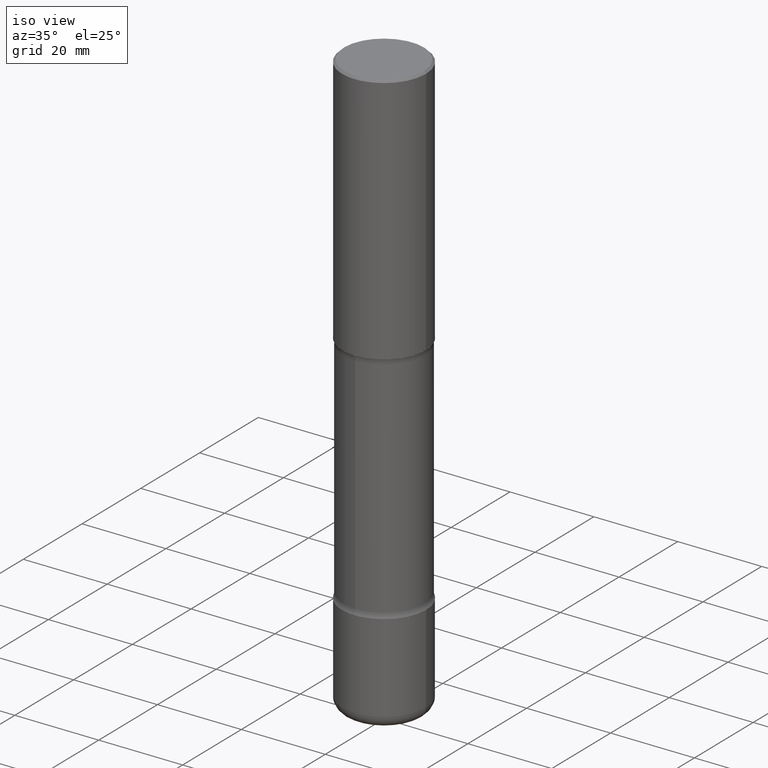
[diagram: clean part render]
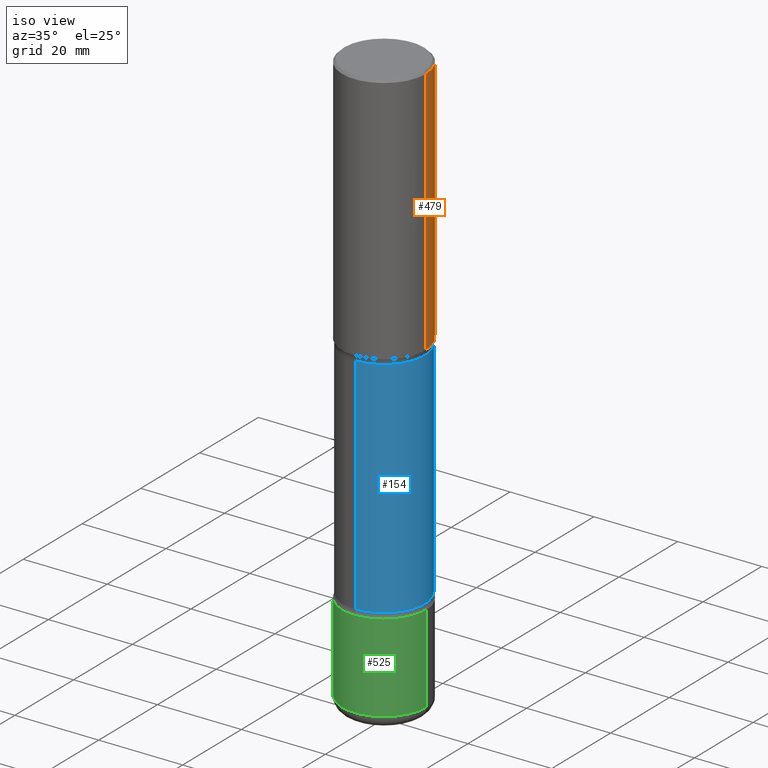
[diagram: same view with three faces highlighted in distinct colors, each labeled with its STEP entity id]
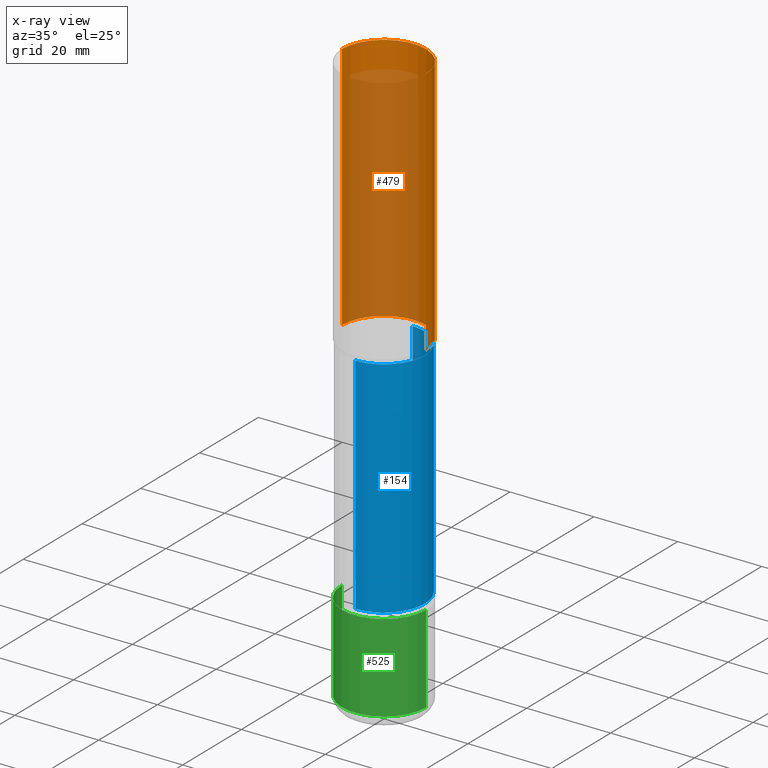
[diagram: x-ray of the same camera — body ghosted, the three highlighted faces saturated]
A machine part, iso view with three faces highlighted in distinct colors.
The next image is the same camera in x-ray (body ghosted, the three faces saturated) — at least one of them is partly hidden behind the body in this view.
Their STEP definitions:

[orange] entity #479 — the highlighted cylindrical surface (partial cylindrical patch) has radius 10 mm, axis along (-0, 0, 1).
#3 = AXIS2_PLACEMENT_3D ( 'NONE', #250, #351, #558 ) ;
#14 = VECTOR ( 'NONE', #131, 39.37007874015748143 ) ;
#51 = EDGE_CURVE ( 'NONE', #551, #335, #510, .T. ) ;
#60 = DIRECTION ( 'NONE',  ( 1.000000000000000000, -6.982962677686265922E-15, 0.000000000000000000 ) ) ;
#66 = CARTESIAN_POINT ( 'NONE',  ( 0.3937000000000002164, -1.099676962482036442E-14, -2.362200000000000077 ) ) ;
#76 = VECTOR ( 'NONE', #407, 39.37007874015748143 ) ;
#131 = DIRECTION ( 'NONE',  ( -2.445468806185136877E-29, 3.491481338843145188E-15, 1.000000000000000000 ) ) ;
#143 = CARTESIAN_POINT ( 'NONE',  ( -0.3937000000000000499, 2.679362779428219918E-15, -0.02000000000000008715 ) ) ;
#149 = CARTESIAN_POINT ( 'NONE',  ( -0.3937000000000002720, -1.361296672008554112E-15, -2.362200000000000077 ) ) ;
#161 = EDGE_CURVE ( 'NONE', #383, #432, #304, .T. ) ;
#170 = CARTESIAN_POINT ( 'NONE',  ( 0.3937000000000000499, -2.770807688499515734E-15, -0.02000000000000008715 ) ) ;
#179 = EDGE_CURVE ( 'NONE', #383, #551, #246, .T. ) ;
#200 = FACE_OUTER_BOUND ( 'NONE', #518, .T. ) ;
#216 = CARTESIAN_POINT ( 'NONE',  ( 0.3937000000000001054, -2.749192406205084005E-15, 1.919750796630860452E-29 ) ) ;
#241 = DIRECTION ( 'NONE',  ( -2.445468806185136597E-29, 3.491481338843145583E-15, 1.000000000000000000 ) ) ;
#245 = ORIENTED_EDGE ( 'NONE', *, *, #179, .F. ) ;
#246 = LINE ( 'NONE', #216, #14 ) ;
#250 = CARTESIAN_POINT ( 'NONE',  ( 5.776686413970530874E-29, -8.247577218615279626E-15, -2.362200000000000077 ) ) ;
#266 = CARTESIAN_POINT ( 'NONE',  ( -0.3937000000000001054, 2.797406750687515181E-15, -1.936584745033357016E-29 ) ) ;
#269 = LINE ( 'NONE', #266, #76 ) ;
#270 = CARTESIAN_POINT ( 'NONE',  ( 4.890937612370294178E-31, -6.982962677686321191E-17, -0.02000000000000008715 ) ) ;
#303 = CARTESIAN_POINT ( 'NONE',  ( 0.000000000000000000, 0.000000000000000000, 0.000000000000000000 ) ) ;
#304 = CIRCLE ( 'NONE', #3, 0.3937000000000002164 ) ;
#335 = VERTEX_POINT ( 'NONE', #143 ) ;
#341 = ORIENTED_EDGE ( 'NONE', *, *, #51, .F. ) ;
#351 = DIRECTION ( 'NONE',  ( -2.445468806185136597E-29, 3.491481338843145583E-15, 1.000000000000000000 ) ) ;
#383 = VERTEX_POINT ( 'NONE', #66 ) ;
#395 = AXIS2_PLACEMENT_3D ( 'NONE', #303, #241, #485 ) ;
#407 = DIRECTION ( 'NONE',  ( -2.445468806185136877E-29, 3.491481338843145188E-15, 1.000000000000000000 ) ) ;
#417 = EDGE_CURVE ( 'NONE', #432, #335, #269, .T. ) ;
#420 = AXIS2_PLACEMENT_3D ( 'NONE', #270, #451, #60 ) ;
#427 = ORIENTED_EDGE ( 'NONE', *, *, #417, .T. ) ;
#432 = VERTEX_POINT ( 'NONE', #149 ) ;
#451 = DIRECTION ( 'NONE',  ( -2.445468806185136597E-29, 3.491481338843145583E-15, 1.000000000000000000 ) ) ;
#479 = ADVANCED_FACE ( 'NONE', ( #200 ), #555, .T. ) ;
#485 = DIRECTION ( 'NONE',  ( 1.000000000000000000, -6.982962677686266711E-15, 4.876176775795935793E-29 ) ) ;
#510 = CIRCLE ( 'NONE', #420, 0.3937000000000000499 ) ;
#512 = ORIENTED_EDGE ( 'NONE', *, *, #161, .T. ) ;
#518 = EDGE_LOOP ( 'NONE', ( #512, #427, #341, #245 ) ) ;
#551 = VERTEX_POINT ( 'NONE', #170 ) ;
#555 = CYLINDRICAL_SURFACE ( 'NONE', #395, 0.3937000000000001054 ) ;
#558 = DIRECTION ( 'NONE',  ( 1.000000000000000000, -6.982962677686266711E-15, 0.000000000000000000 ) ) ;

[blue] entity #154 — the highlighted cylindrical surface (partial cylindrical patch) has radius 9.7409 mm, axis along (0, -0, -1).
#7 = DIRECTION ( 'NONE',  ( 6.982962677686265133E-15, 1.000000000000000000, -2.849385130288669478E-15 ) ) ;
#52 = VERTEX_POINT ( 'NONE', #403 ) ;
#53 = DIRECTION ( 'NONE',  ( 2.551873980375737716E-29, -3.339103073195795043E-15, -1.000000000000000000 ) ) ;
#59 = EDGE_CURVE ( 'NONE', #517, #549, #120, .T. ) ;
#80 = CARTESIAN_POINT ( 'NONE',  ( 1.357947721502393649E-28, -1.910036462022546845E-14, -5.511800000000000033 ) ) ;
#83 = LINE ( 'NONE', #307, #404 ) ;
#85 = CYLINDRICAL_SURFACE ( 'NONE', #157, 0.3835000000000001741 ) ;
#108 = ORIENTED_EDGE ( 'NONE', *, *, #59, .T. ) ;
#120 = CIRCLE ( 'NONE', #182, 0.3835000000000002851 ) ;
#145 = EDGE_CURVE ( 'NONE', #549, #52, #83, .T. ) ;
#154 = ADVANCED_FACE ( 'NONE', ( #521 ), #85, .T. ) ;
#156 = EDGE_CURVE ( 'NONE', #340, #52, #522, .T. ) ;
#157 = AXIS2_PLACEMENT_3D ( 'NONE', #80, #357, #7 ) ;
#175 = ORIENTED_EDGE ( 'NONE', *, *, #527, .F. ) ;
#182 = AXIS2_PLACEMENT_3D ( 'NONE', #540, #226, #360 ) ;
#218 = DIRECTION ( 'NONE',  ( 2.551873980375737716E-29, -3.339103073195795043E-15, -1.000000000000000000 ) ) ;
#221 = CARTESIAN_POINT ( 'NONE',  ( 1.104200435858908498E-28, -1.578010528209585513E-14, -4.517443352317408234 ) ) ;
#226 = DIRECTION ( 'NONE',  ( 2.551873980375737716E-29, -3.339103073195795043E-15, -1.000000000000000000 ) ) ;
#255 = LINE ( 'NONE', #491, #276 ) ;
#276 = VECTOR ( 'NONE', #218, 39.37007874015748143 ) ;
#294 = AXIS2_PLACEMENT_3D ( 'NONE', #221, #53, #488 ) ;
#306 = CARTESIAN_POINT ( 'NONE',  ( -2.665989521933964538E-15, -0.3835000000000090559, -2.411656647682591803 ) ) ;
#307 = CARTESIAN_POINT ( 'NONE',  ( -2.631000982145247058E-15, -0.3835000000000192699, -5.511799999999999145 ) ) ;
#340 = VERTEX_POINT ( 'NONE', #544 ) ;
#357 = DIRECTION ( 'NONE',  ( 2.551873980375737716E-29, -3.339103073195795043E-15, -1.000000000000000000 ) ) ;
#360 = DIRECTION ( 'NONE',  ( 6.982962677686265133E-15, 1.000000000000000000, -3.561731412860835763E-15 ) ) ;
#373 = CARTESIAN_POINT ( 'NONE',  ( 2.677966186892741486E-15, 0.3834999999999915699, -2.411656647682594468 ) ) ;
#385 = EDGE_LOOP ( 'NONE', ( #108, #387, #471, #175 ) ) ;
#386 = DIRECTION ( 'NONE',  ( 2.551873980375737716E-29, -3.339103073195795043E-15, -1.000000000000000000 ) ) ;
#387 = ORIENTED_EDGE ( 'NONE', *, *, #145, .T. ) ;
#403 = CARTESIAN_POINT ( 'NONE',  ( -2.665989521933906951E-15, -0.3835000000000157727, -4.517443352317407346 ) ) ;
#404 = VECTOR ( 'NONE', #386, 39.37007874015748143 ) ;
#471 = ORIENTED_EDGE ( 'NONE', *, *, #156, .F. ) ;
#488 = DIRECTION ( 'NONE',  ( 6.982962677686265922E-15, 1.000000000000000000, -2.849385130288670661E-15 ) ) ;
#491 = CARTESIAN_POINT ( 'NONE',  ( 2.677966186892819583E-15, 0.3834999999999810227, -5.511800000000000921 ) ) ;
#517 = VERTEX_POINT ( 'NONE', #373 ) ;
#521 = FACE_OUTER_BOUND ( 'NONE', #385, .T. ) ;
#522 = CIRCLE ( 'NONE', #294, 0.3835000000000000075 ) ;
#527 = EDGE_CURVE ( 'NONE', #517, #340, #255, .T. ) ;
#540 = CARTESIAN_POINT ( 'NONE',  ( 5.668302058810330557E-29, -8.748666425154899227E-15, -2.411656647682593135 ) ) ;
#544 = CARTESIAN_POINT ( 'NONE',  ( 2.677966186892793550E-15, 0.3834999999999842424, -4.517443352317409122 ) ) ;
#549 = VERTEX_POINT ( 'NONE', #306 ) ;

[green] entity #525 — the highlighted cylindrical surface (partial cylindrical patch) has radius 10 mm, axis along (-0, 0, 1).
#8 = CARTESIAN_POINT ( 'NONE',  ( 0.000000000000000000, 0.000000000000000000, 0.000000000000000000 ) ) ;
#10 = VECTOR ( 'NONE', #499, 39.37007874015748143 ) ;
#37 = ORIENTED_EDGE ( 'NONE', *, *, #61, .T. ) ;
#45 = CARTESIAN_POINT ( 'NONE',  ( 1.319012509992077371E-28, -1.883200289731827938E-14, -5.393700000000000827 ) ) ;
#61 = EDGE_CURVE ( 'NONE', #291, #169, #228, .T. ) ;
#65 = AXIS2_PLACEMENT_3D ( 'NONE', #45, #217, #167 ) ;
#69 = ORIENTED_EDGE ( 'NONE', *, *, #327, .F. ) ;
#105 = CARTESIAN_POINT ( 'NONE',  ( 0.3937000000000003830, -2.158119530352336260E-14, -5.393700000000000827 ) ) ;
#107 = DIRECTION ( 'NONE',  ( 1.000000000000000000, -6.982962677686270655E-15, 0.000000000000000000 ) ) ;
#121 = CIRCLE ( 'NONE', #65, 0.3937000000000006605 ) ;
#133 = EDGE_LOOP ( 'NONE', ( #220, #438, #37, #69 ) ) ;
#137 = CIRCLE ( 'NONE', #275, 0.3937000000000004385 ) ;
#162 = VERTEX_POINT ( 'NONE', #444 ) ;
#167 = DIRECTION ( 'NONE',  ( 1.000000000000000000, -6.982962677686266711E-15, 0.000000000000000000 ) ) ;
#169 = VERTEX_POINT ( 'NONE', #254 ) ;
#193 = CARTESIAN_POINT ( 'NONE',  ( 1.116821149096690103E-28, -1.594524612636276117E-14, -4.566900000000000404 ) ) ;
#215 = AXIS2_PLACEMENT_3D ( 'NONE', #8, #260, #299 ) ;
#217 = DIRECTION ( 'NONE',  ( -2.445468806185136597E-29, 3.491481338843145583E-15, 1.000000000000000000 ) ) ;
#220 = ORIENTED_EDGE ( 'NONE', *, *, #309, .F. ) ;
#224 = LINE ( 'NONE', #411, #10 ) ;
#225 = DIRECTION ( 'NONE',  ( -2.445468806185136597E-29, 3.491481338843145583E-15, 1.000000000000000000 ) ) ;
#228 = LINE ( 'NONE', #308, #393 ) ;
#242 = FACE_OUTER_BOUND ( 'NONE', #133, .T. ) ;
#254 = CARTESIAN_POINT ( 'NONE',  ( 0.3937000000000004385, -1.869443853256785070E-14, -4.566900000000000404 ) ) ;
#260 = DIRECTION ( 'NONE',  ( -2.445468806185136597E-29, 3.491481338843145583E-15, 1.000000000000000000 ) ) ;
#275 = AXIS2_PLACEMENT_3D ( 'NONE', #193, #225, #107 ) ;
#291 = VERTEX_POINT ( 'NONE', #105 ) ;
#299 = DIRECTION ( 'NONE',  ( 1.000000000000000000, -6.982962677686266711E-15, 4.876176775795935793E-29 ) ) ;
#308 = CARTESIAN_POINT ( 'NONE',  ( 0.3937000000000004940, -2.749192406205086766E-15, 1.919750796630862414E-29 ) ) ;
#309 = EDGE_CURVE ( 'NONE', #162, #442, #224, .T. ) ;
#310 = CYLINDRICAL_SURFACE ( 'NONE', #215, 0.3937000000000004940 ) ;
#327 = EDGE_CURVE ( 'NONE', #442, #169, #137, .T. ) ;
#393 = VECTOR ( 'NONE', #489, 39.37007874015748143 ) ;
#411 = CARTESIAN_POINT ( 'NONE',  ( -0.3937000000000004940, 2.797406750687517942E-15, -1.936584745033358697E-29 ) ) ;
#438 = ORIENTED_EDGE ( 'NONE', *, *, #458, .T. ) ;
#442 = VERTEX_POINT ( 'NONE', #445 ) ;
#444 = CARTESIAN_POINT ( 'NONE',  ( -0.3937000000000003830, -1.603459614663076223E-14, -5.393700000000000827 ) ) ;
#445 = CARTESIAN_POINT ( 'NONE',  ( -0.3937000000000004385, -1.459121776115300155E-14, -4.566900000000000404 ) ) ;
#458 = EDGE_CURVE ( 'NONE', #162, #291, #121, .T. ) ;
#489 = DIRECTION ( 'NONE',  ( -2.445468806185136877E-29, 3.491481338843145188E-15, 1.000000000000000000 ) ) ;
#499 = DIRECTION ( 'NONE',  ( -2.445468806185136877E-29, 3.491481338843145188E-15, 1.000000000000000000 ) ) ;
#525 = ADVANCED_FACE ( 'NONE', ( #242 ), #310, .T. ) ;